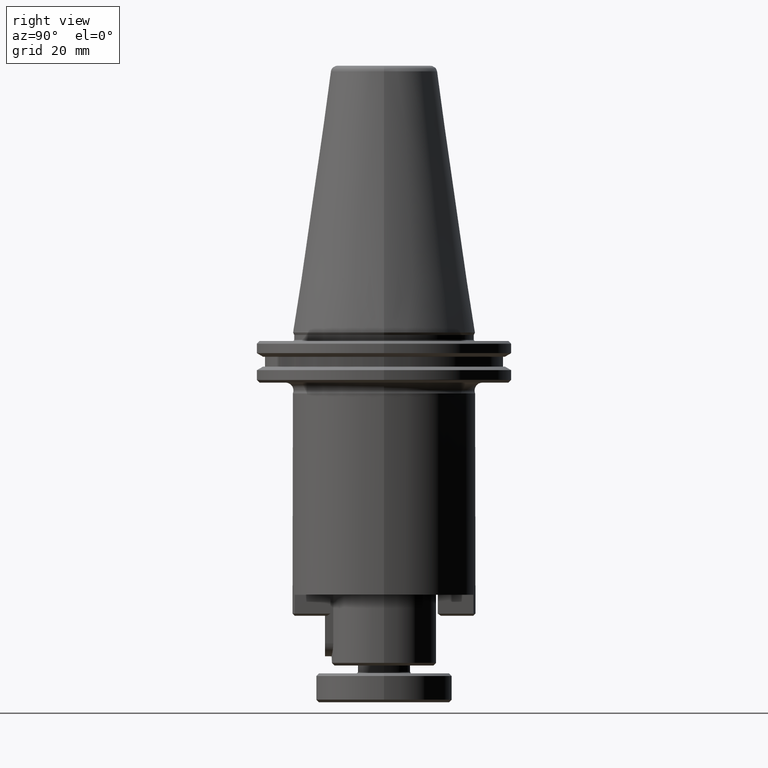
[diagram: clean part render]
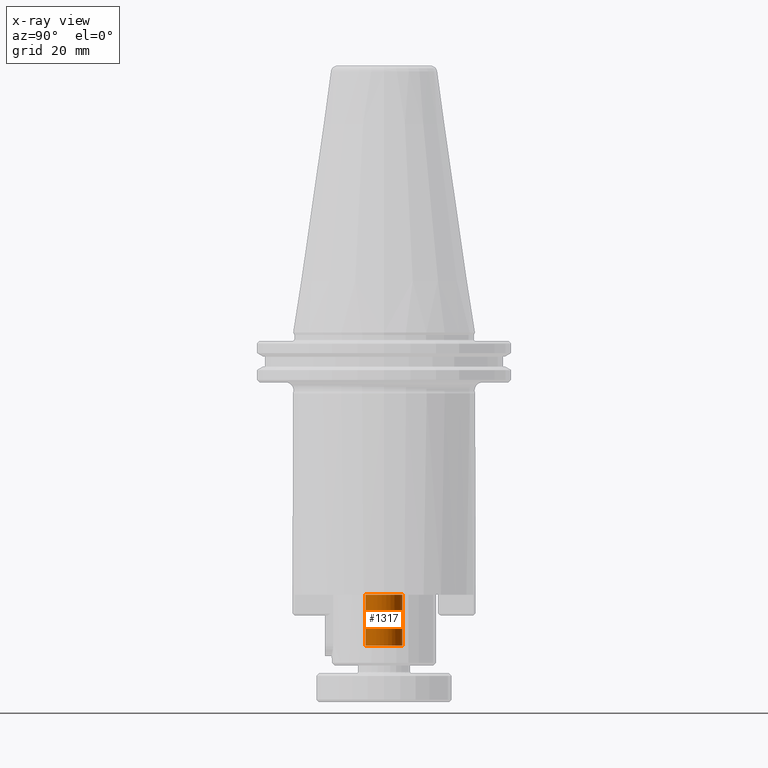
[diagram: x-ray — body ghosted, one internal face saturated and labeled with its STEP entity id]
A machine part, right view, then the same camera in x-ray: the body is ghosted and one INTERNAL B-rep face — a face not visible from any outside direction — is saturated and labeled: STEP entity #1317.
In plain terms, the highlighted cylindrical surface (edge-blend (fillet) strip) has radius 7 mm, axis along (0, -0, 1).
Its self-contained STEP definition (entity closure, byte-faithful):
#2 = VERTEX_POINT ( 'NONE', #62 ) ;
#18 = ORIENTED_EDGE ( 'NONE', *, *, #638, .T. ) ;
#22 = EDGE_CURVE ( 'NONE', #2092, #1953, #2872, .T. ) ;
#62 = CARTESIAN_POINT ( 'NONE',  ( 122.1529126039459900, 183.0907862128019600, 123.8002788125370400 ) ) ;
#66 = ORIENTED_EDGE ( 'NONE', *, *, #2695, .T. ) ;
#126 = DIRECTION ( 'NONE',  ( 0.0000000000000000000, 0.0000000000000000000, 1.000000000000000000 ) ) ;
#187 = VERTEX_POINT ( 'NONE', #1763 ) ;
#259 = EDGE_CURVE ( 'NONE', #1444, #187, #2902, .T. ) ;
#327 = AXIS2_PLACEMENT_3D ( 'NONE', #2299, #2533, #2273 ) ;
#412 = ORIENTED_EDGE ( 'NONE', *, *, #259, .F. ) ;
#452 = VECTOR ( 'NONE', #2796, 1000.000000000000000 ) ;
#519 = LINE ( 'NONE', #1168, #452 ) ;
#559 = DIRECTION ( 'NONE',  ( 0.0000000000000000000, -9.912705577010328500E-016, 1.000000000000000000 ) ) ;
#638 = EDGE_CURVE ( 'NONE', #2, #1953, #731, .T. ) ;
#647 = CARTESIAN_POINT ( 'NONE',  ( 122.1529126039459900, 190.0907862128019900, 104.3002788091370100 ) ) ;
#649 = AXIS2_PLACEMENT_3D ( 'NONE', #647, #2272, #878 ) ;
#717 = CARTESIAN_POINT ( 'NONE',  ( 122.1529126039459900, 197.0907862128019600, 123.8002788125370400 ) ) ;
#731 = CIRCLE ( 'NONE', #2413, 6.999999999999992000 ) ;
#878 = DIRECTION ( 'NONE',  ( 0.0000000000000000000, -1.000000000000000000, -1.982541115402063300E-015 ) ) ;
#968 = EDGE_LOOP ( 'NONE', ( #2941, #2643, #412, #66, #18 ) ) ;
#1168 = CARTESIAN_POINT ( 'NONE',  ( 122.1529126039459900, 183.0907862128019900, 104.3002788091370100 ) ) ;
#1317 = ADVANCED_FACE ( 'NONE', ( #2212 ), #1520, .F. ) ;
#1383 = AXIS2_PLACEMENT_3D ( 'NONE', #1945, #559, #2178 ) ;
#1444 = VERTEX_POINT ( 'NONE', #1508 ) ;
#1504 = CARTESIAN_POINT ( 'NONE',  ( 122.1529126039459900, 190.0907862128019600, 123.8002788125370400 ) ) ;
#1508 = CARTESIAN_POINT ( 'NONE',  ( 122.1529126039459900, 183.0907862128019900, 104.3002788091370000 ) ) ;
#1520 = CYLINDRICAL_SURFACE ( 'NONE', #327, 7.000000000000006200 ) ;
#1734 = DIRECTION ( 'NONE',  ( 1.000000000000000000, 0.0000000000000000000, 0.0000000000000000000 ) ) ;
#1763 = CARTESIAN_POINT ( 'NONE',  ( 129.1529126039459900, 190.0907862128019900, 104.3002788091370100 ) ) ;
#1814 = CIRCLE ( 'NONE', #649, 7.000000000000006200 ) ;
#1927 = CARTESIAN_POINT ( 'NONE',  ( 122.1529126039459900, 197.0907862128019900, 104.3002788091370400 ) ) ;
#1945 = CARTESIAN_POINT ( 'NONE',  ( 122.1529126039459900, 190.0907862128019900, 104.3002788091370100 ) ) ;
#1953 = VERTEX_POINT ( 'NONE', #717 ) ;
#2092 = VERTEX_POINT ( 'NONE', #2351 ) ;
#2162 = DIRECTION ( 'NONE',  ( 0.0000000000000000000, -9.912705577010328500E-016, 1.000000000000000000 ) ) ;
#2178 = DIRECTION ( 'NONE',  ( 0.0000000000000000000, -1.000000000000000000, -1.982541115402063300E-015 ) ) ;
#2196 = VECTOR ( 'NONE', #2162, 1000.000000000000000 ) ;
#2212 = FACE_OUTER_BOUND ( 'NONE', #968, .T. ) ;
#2272 = DIRECTION ( 'NONE',  ( 0.0000000000000000000, -9.912705577010328500E-016, 1.000000000000000000 ) ) ;
#2273 = DIRECTION ( 'NONE',  ( 0.0000000000000000000, -1.000000000000000000, -1.982541115402063300E-015 ) ) ;
#2299 = CARTESIAN_POINT ( 'NONE',  ( 122.1529126039459900, 190.0907862128019900, 104.3002788091370300 ) ) ;
#2351 = CARTESIAN_POINT ( 'NONE',  ( 122.1529126039459900, 197.0907862128019900, 104.3002788091370100 ) ) ;
#2413 = AXIS2_PLACEMENT_3D ( 'NONE', #1504, #126, #1734 ) ;
#2533 = DIRECTION ( 'NONE',  ( 0.0000000000000000000, -9.912705577010328500E-016, 1.000000000000000000 ) ) ;
#2573 = EDGE_CURVE ( 'NONE', #187, #2092, #1814, .T. ) ;
#2643 = ORIENTED_EDGE ( 'NONE', *, *, #2573, .F. ) ;
#2695 = EDGE_CURVE ( 'NONE', #1444, #2, #519, .T. ) ;
#2796 = DIRECTION ( 'NONE',  ( 0.0000000000000000000, -9.912705577010328500E-016, 1.000000000000000000 ) ) ;
#2872 = LINE ( 'NONE', #1927, #2196 ) ;
#2902 = CIRCLE ( 'NONE', #1383, 7.000000000000006200 ) ;
#2941 = ORIENTED_EDGE ( 'NONE', *, *, #22, .F. ) ;